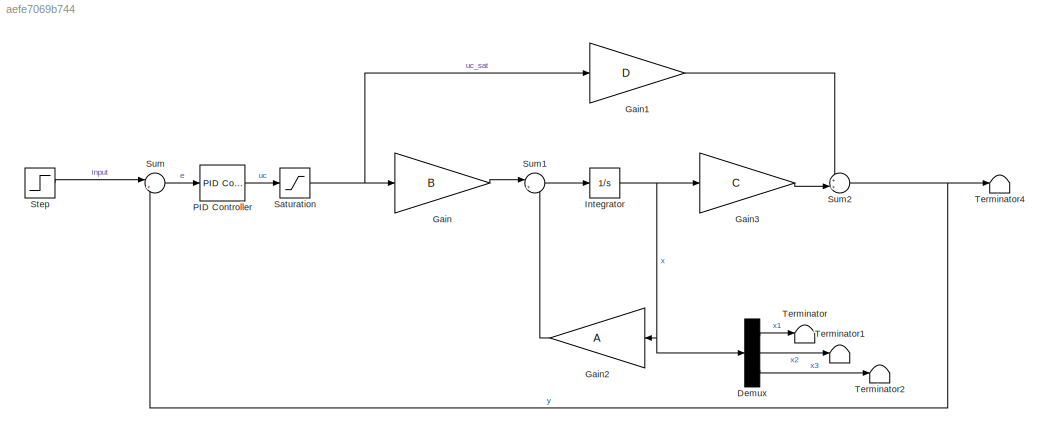
MODEL slx_aefe7069b744
KIND model
CONFIG AbsTol = auto
CONFIG EnableMultiTasking = off
CONFIG FixedStep = auto
CONFIG MaxStep = auto
CONFIG MinStep = auto
CONFIG RelTol = 1e-3
CONFIG SampleTimeConstraint = Unconstrained
CONFIG SolverName = VariableStepAuto
CONFIG StartTime = 0.0
CONFIG StopTime = 25
BLOCK [Demux] Demux
  Outputs = 3
BLOCK [Gain] Gain
  Gain = B
  Multiplication = Matrix(K*u) (u vector)
BLOCK [Gain] Gain1
  Gain = D
  Multiplication = Matrix(K*u) (u vector)
BLOCK [Gain] Gain2
  Gain = A
  Multiplication = Matrix(K*u) (u vector)
  NameLocation = top
BLOCK [Gain] Gain3
  Gain = C
  Multiplication = Matrix(K*u) (u vector)
BLOCK [Integrator] Integrator
BLOCK [Reference] PID Controller  REF=slpidlib/PID Controller
  LibrarySourceBlock = simulink/Continuous/PID Controller
  SourceBlock = slpidlib/PID Controller
  SourceType = PID 1dof
BLOCK [Saturate] Saturation
  LowerLimit = 0
  UpperLimit = 5
BLOCK [Step] Step
  After = 0.2
  SampleTime = 0
BLOCK [Sum] Sum
  Inputs = |+-
BLOCK [Sum] Sum1
  Inputs = |++
BLOCK [Sum] Sum2
  Inputs = ++|
BLOCK [Terminator] Terminator
BLOCK [Terminator] Terminator1
BLOCK [Terminator] Terminator2
BLOCK [Terminator] Terminator4
LINE Demux:1 -> Terminator:1
LINE Demux:2 -> Terminator1:1
LINE Demux:3 -> Terminator2:1
LINE Gain1:1 -> Sum2:1
LINE Gain2:1 -> Sum1:2
LINE Gain3:1 -> Sum2:2
LINE Gain:1 -> Sum1:1
NET Integrator:1 -> Demux:1, Gain2:1, Gain3:1
LINE PID Controller:1 -> Saturation:1
NET Saturation:1 -> Gain1:1, Gain:1
LINE Step:1 -> Sum:1
LINE Sum1:1 -> Integrator:1
NET Sum2:1 -> Sum:2, Terminator4:1
LINE Sum:1 -> PID Controller:1
note: NET lines group one-source signal fan-out (src -> all destinations, sorted); 1:1 wires keep LINE
